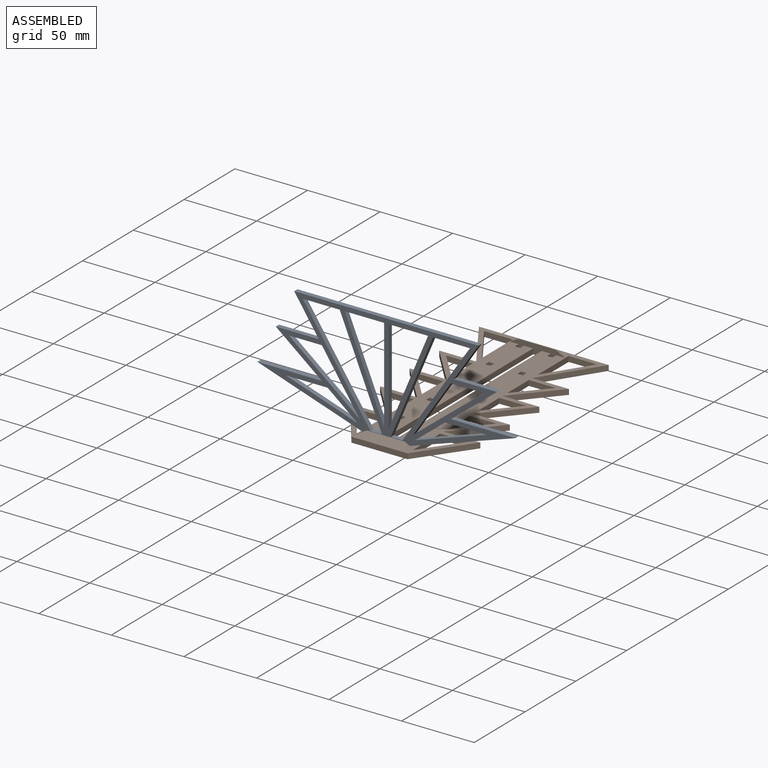
[diagram: assembled view]
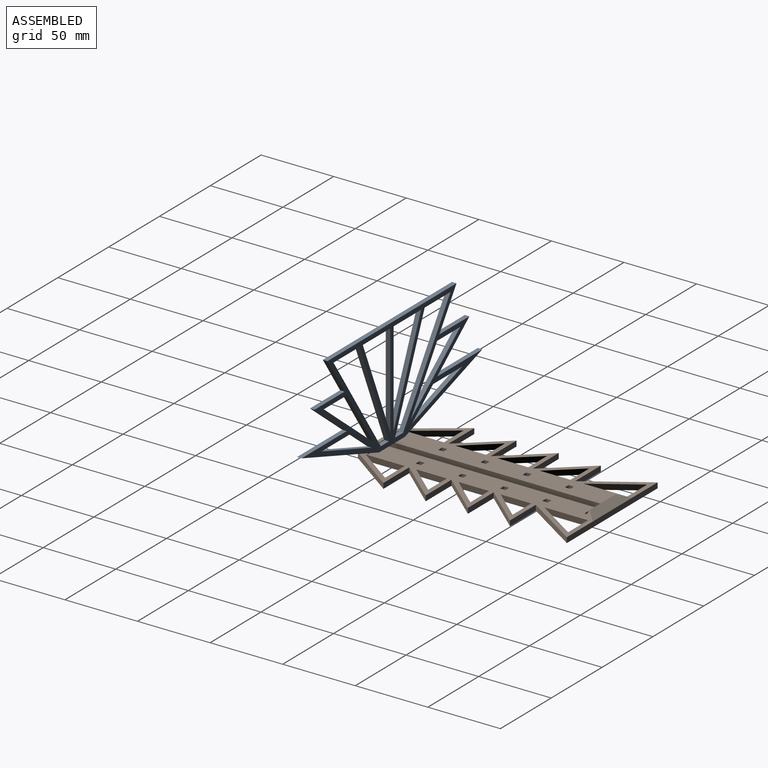
[diagram: assembled view, second angle]
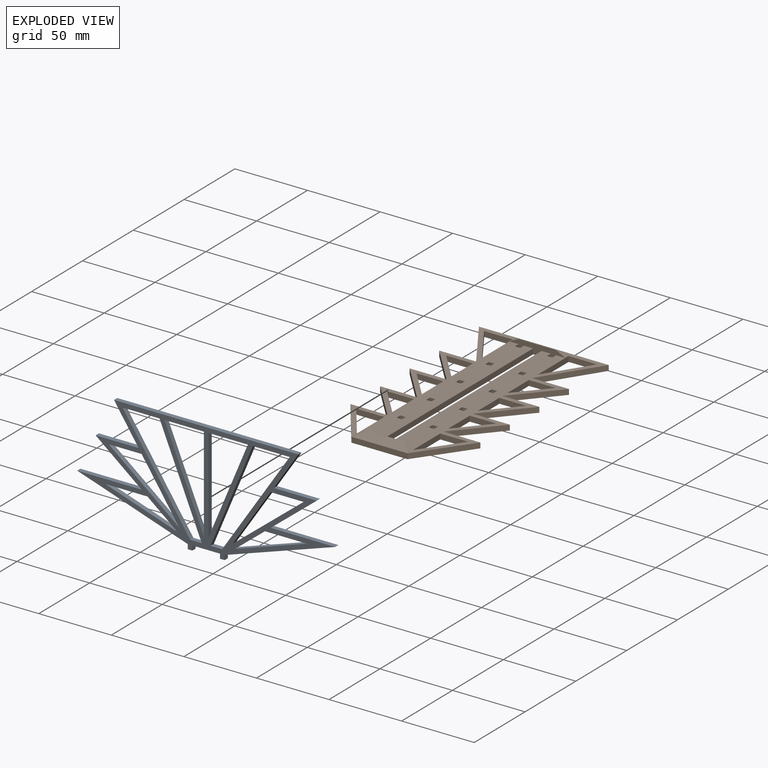
[diagram: exploded view]
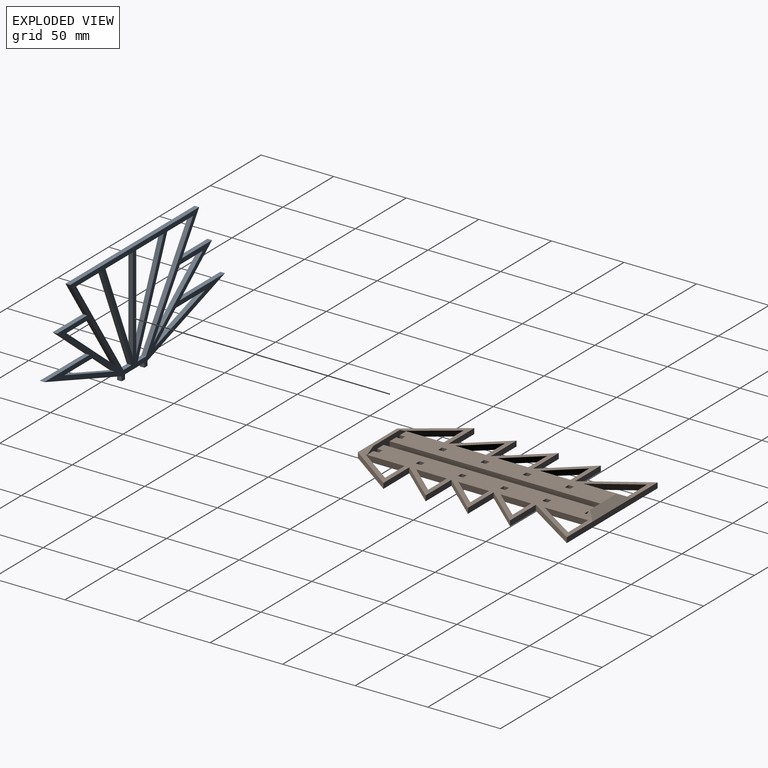
[diagram: exploded view, second angle]
ASSEMBLY  parts=2 mates=2
PART A: 46 faces, bbox 177.8x79.4x3.2 mm
  f0: plane 27.12x3.18mm, normal (0,-1,0), area 86.1mm2, adj f1,f43,f44,f45
  f1: plane 65.09x27.12mm, normal (-0.92,0.38,0), area 223.9mm2, adj f0,f43,f44,f45
  f2: plane 48.64x38.91mm, normal (-0.62,0.78,0), area 197.8mm2, adj f3,f35,f44,f45
  f3: plane 38.91x25.94mm, normal (0.83,-0.55,0), area 148.5mm2, adj f2,f35,f44,f45
  f4: plane 69.85x46.57mm, normal (-0.83,0.55,0), area 266.5mm2, adj f5,f36,f44,f45
  f5: plane 7.96x3.18mm, normal (0,1,0), area 25.3mm2, adj f4,f6,f44,f45
  f6: plane 69.85x29.1mm, normal (0.92,-0.38,0), area 240.3mm2, adj f5,f36,f44,f45
  f7: plane 20.61x16.49mm, normal (0.62,-0.78,0), area 83.8mm2, adj f8,f37,f44,f45
  f8: plane 28.85x3.18mm, normal (0,-1,0), area 91.6mm2, adj f7,f37,f44,f45
  f9: plane 31.75x25.4mm, normal (-0.62,-0.78,0), area 129.1mm2, adj f10,f38,f44,f45
  f10: plane 44.45x3.18mm, normal (0,1,0), area 141.1mm2, adj f9,f11,f44,f45
  f11: plane 76.2x25.4mm, normal (-0.32,-0.95,0), area 255mm2, adj f10,f12,f44,f45
  f12: plane 3.18x3.18mm, normal (-1,0,0), area 10.1mm2, adj f11,f13,f44,f45
  f13: plane 3.18x3.18mm, normal (0,-1,0), area 10.1mm2, adj f12,f14,f44,f45
  f14: plane 3.18x3.18mm, normal (1,0,0), area 10.1mm2, adj f13,f15,f44,f45
  f15: plane 19.05x3.18mm, normal (0,-1,0), area 60.5mm2, adj f14,f16,f44,f45
  f16: plane 3.18x3.18mm, normal (-1,0,0), area 10.1mm2, adj f15,f17,f44,f45
  f17: plane 3.18x3.18mm, normal (0,-1,0), area 10.1mm2, adj f16,f18,f44,f45
  f18: plane 3.18x3.18mm, normal (1,0,0), area 10.1mm2, adj f17,f19,f44,f45
  f19: plane 76.2x25.4mm, normal (0.32,-0.95,0), area 255mm2, adj f18,f20,f44,f45
  f20: plane 44.45x3.18mm, normal (0,1,0), area 141.1mm2, adj f19,f21,f44,f45
  f21: plane 31.75x25.4mm, normal (0.62,-0.78,0), area 129.1mm2, adj f20,f22,f44,f45
  f22: plane 29.63x3.18mm, normal (0,1,0), area 94.1mm2, adj f21,f23,f44,f45
  f23: plane 25.4x16.93mm, normal (0.83,-0.55,0), area 96.9mm2, adj f22,f24,f44,f45
  f24: plane 127x3.18mm, normal (0,1,0), area 403.2mm2, adj f23,f25,f44,f45
  f25: plane 25.4x16.93mm, normal (-0.83,-0.55,0), area 96.9mm2, adj f24,f38,f44,f45
  f26: plane 27.12x3.18mm, normal (0,-1,0), area 86.1mm2, adj f27,f39,f44,f45
  f27: plane 65.09x3.18mm, normal (-1,0,0), area 206.7mm2, adj f26,f39,f44,f45
  f28: plane 69.85x46.57mm, normal (0.83,0.55,0), area 266.5mm2, adj f29,f40,f44,f45
  f29: plane 25.42x3.18mm, normal (0,-1,0), area 80.7mm2, adj f28,f30,f44,f45
  f30: plane 69.85x29.1mm, normal (-0.92,-0.38,0), area 240.3mm2, adj f29,f40,f44,f45
  f31: plane 20.61x16.49mm, normal (-0.62,-0.78,0), area 83.8mm2, adj f32,f41,f44,f45
  f32: plane 49.46x16.49mm, normal (0.32,0.95,0), area 165.5mm2, adj f31,f41,f44,f45
  f33: plane 38.91x25.94mm, normal (-0.83,-0.55,0), area 148.5mm2, adj f34,f42,f44,f45
  f34: plane 48.64x38.91mm, normal (0.62,0.78,0), area 197.8mm2, adj f33,f42,f44,f45
  f35: plane 22.7x3.18mm, normal (0,-1,0), area 72.1mm2, adj f2,f3,f44,f45
  f36: plane 25.42x3.18mm, normal (0,-1,0), area 80.7mm2, adj f4,f6,f44,f45
  f37: plane 49.46x16.49mm, normal (-0.32,0.95,0), area 165.5mm2, adj f7,f8,f44,f45
  f38: plane 29.63x3.18mm, normal (0,1,0), area 94.1mm2, adj f9,f25,f44,f45
  f39: plane 65.09x27.12mm, normal (0.92,0.38,0), area 223.9mm2, adj f26,f27,f44,f45
  f40: plane 7.96x3.18mm, normal (0,1,0), area 25.3mm2, adj f28,f30,f44,f45
  f41: plane 28.85x3.18mm, normal (0,-1,0), area 91.6mm2, adj f31,f32,f44,f45
  f42: plane 22.7x3.18mm, normal (0,-1,0), area 72.1mm2, adj f33,f34,f44,f45
  f43: plane 65.09x3.18mm, normal (1,0,0), area 206.7mm2, adj f0,f1,f44,f45
  f44: plane 177.8x79.38mm, normal (0,0,1), area 3005.4mm2, adj f0,f1,f2,f3,f4,f5,f6,f7
  f45: plane 177.8x79.38mm, normal (0,0,-1), area 3005.4mm2, adj f0,f1,f2,f3,f4,f5,f6,f7
PART B: 107 faces, bbox 89.4x161.8x6.9 mm
  f0: plane 161.75x41.78mm, normal (0,0,1), area 3280.2mm2, adj f15,f21,f22,f23,f24,f25,f26,f27
  f1: plane 161.75x41.78mm, normal (0,0,1), area 3280.2mm2, adj f2,f3,f4,f5,f6,f7,f8,f9
  f2: plane 3.68x3.68mm, normal (1,0,0), area 13.5mm2, adj f1,f3,f99,f100
  f3: plane 3.68x3.68mm, normal (0,-1,0), area 13.5mm2, adj f1,f2,f4,f100
  f4: plane 3.68x3.68mm, normal (-1,0,0), area 13.5mm2, adj f1,f3,f99,f100
  f5: plane 3.68x3.68mm, normal (1,0,0), area 13.5mm2, adj f1,f6,f77,f100
  f6: plane 3.68x3.68mm, normal (0,-1,0), area 13.5mm2, adj f1,f5,f7,f100
  f7: plane 3.68x3.68mm, normal (-1,0,0), area 13.5mm2, adj f1,f6,f77,f100
  f8: plane 3.68x3.68mm, normal (1,0,0), area 13.5mm2, adj f1,f9,f78,f100
  f9: plane 3.68x3.68mm, normal (0,-1,0), area 13.5mm2, adj f1,f8,f10,f100
  f10: plane 3.68x3.68mm, normal (-1,0,0), area 13.5mm2, adj f1,f9,f78,f100
  f11: plane 3.68x3.68mm, normal (1,0,0), area 13.5mm2, adj f1,f12,f79,f100
  f12: plane 3.68x3.68mm, normal (0,-1,0), area 13.5mm2, adj f1,f11,f13,f100
  f13: plane 3.68x3.68mm, normal (-1,0,0), area 13.5mm2, adj f1,f12,f79,f100
  f14: plane 3.68x3.68mm, normal (1,0,0), area 13.5mm2, adj f1,f15,f80,f100
  f15: plane 38.6x6.85mm, normal (0,-1,0), area 150.9mm2, adj f0,f1,f14,f16,f24,f30,f84,f86
  f16: plane 3.68x3.68mm, normal (-1,0,0), area 13.5mm2, adj f1,f15,f80,f100
  f17: plane 21.07x3.68mm, normal (-1,0,0), area 77.4mm2, adj f1,f18,f81,f100
  f18: plane 21.07x18.41mm, normal (0.75,0.66,0), area 102.8mm2, adj f1,f17,f81,f100
  f19: plane 30.1x3.68mm, normal (-1,0,0), area 110.6mm2, adj f1,f20,f82,f100,f106
  f20: plane 30.1x19.55mm, normal (0.84,0.54,0), area 131.9mm2, adj f1,f19,f82,f100
  f21: plane 3.68x3.68mm, normal (0,-1,0), area 13.5mm2, adj f0,f22,f83,f100
  f22: plane 3.68x3.68mm, normal (-1,0,0), area 13.5mm2, adj f0,f21,f23,f100
  f23: plane 3.68x3.68mm, normal (0,1,0), area 13.5mm2, adj f0,f22,f83,f100
  f24: plane 3.68x3.68mm, normal (-1,0,0), area 13.5mm2, adj f0,f15,f25,f100
  f25: plane 3.68x3.68mm, normal (0,1,0), area 13.5mm2, adj f0,f24,f84,f100
  f26: plane 3.68x3.68mm, normal (0,-1,0), area 13.5mm2, adj f0,f27,f85,f100
  f27: plane 3.68x3.68mm, normal (-1,0,0), area 13.5mm2, adj f0,f26,f28,f100
  f28: plane 3.68x3.68mm, normal (0,1,0), area 13.5mm2, adj f0,f27,f85,f100
  f29: plane 38.6x6.85mm, normal (0,1,0), area 150.9mm2, adj f0,f1,f30,f67,f74,f76,f86,f95
  f30: plane 149.05x3.68mm, normal (1,0,0), area 547.8mm2, adj f1,f15,f29,f100
  f31: plane 18.41x3.68mm, normal (0,-1,0), area 67.7mm2, adj f0,f32,f87,f100
  f32: plane 21.07x18.41mm, normal (-0.75,0.66,0), area 102.8mm2, adj f0,f31,f87,f100
  f33: plane 19.22x3.68mm, normal (0,-1,0), area 70.6mm2, adj f0,f34,f88,f100
  f34: plane 26.8x19.22mm, normal (-0.81,0.58,0), area 121.2mm2, adj f0,f33,f88,f100
  f35: plane 19.55x3.68mm, normal (0,-1,0), area 71.9mm2, adj f0,f36,f89,f100
  f36: plane 30.1x19.55mm, normal (-0.84,0.54,0), area 131.9mm2, adj f0,f35,f89,f100
  f37: plane 18.41x3.68mm, normal (0,-1,0), area 67.7mm2, adj f0,f38,f90,f100
  f38: plane 21.07x18.41mm, normal (-0.75,0.66,0), area 102.8mm2, adj f0,f37,f90,f100
  f39: plane 18.41x3.68mm, normal (0,-1,0), area 67.7mm2, adj f0,f40,f91,f100
  f40: plane 21.07x18.41mm, normal (-0.75,0.66,0), area 102.8mm2, adj f0,f39,f91,f100
  f41: plane 29.08x25.4mm, normal (-0.75,-0.66,0), area 141.9mm2, adj f1,f42,f92,f100
  f42: plane 25.4x3.68mm, normal (0,1,0), area 93.3mm2, adj f1,f41,f43,f100
  f43: plane 29.08x25.4mm, normal (-0.75,-0.66,0), area 141.9mm2, adj f1,f42,f44,f100
  f44: plane 25.4x3.68mm, normal (0,1,0), area 93.3mm2, adj f1,f43,f45,f100
  f45: plane 35.43x25.4mm, normal (-0.81,-0.58,0), area 160.2mm2, adj f1,f44,f46,f100
  f46: plane 38.6x3.68mm, normal (0,-1,0), area 141.9mm2, adj f45,f47,f100,f102
  f47: plane 35.43x25.4mm, normal (0.81,-0.58,0), area 160.2mm2, adj f0,f46,f48,f100
  f48: plane 25.4x3.68mm, normal (0,1,0), area 93.3mm2, adj f0,f47,f49,f100
  f49: plane 29.08x25.4mm, normal (0.75,-0.66,0), area 141.9mm2, adj f0,f48,f50,f100
  f50: plane 25.4x3.68mm, normal (0,1,0), area 93.3mm2, adj f0,f49,f51,f100
  f51: plane 29.08x25.4mm, normal (0.75,-0.66,0), area 141.9mm2, adj f0,f50,f52,f100
  f52: plane 25.4x3.68mm, normal (0,1,0), area 93.3mm2, adj f0,f51,f53,f100
  f53: plane 29.08x25.4mm, normal (0.75,-0.66,0), area 141.9mm2, adj f0,f52,f54,f100
  f54: plane 25.4x3.68mm, normal (0,1,0), area 93.3mm2, adj f0,f53,f55,f100
  f55: plane 39.1x25.4mm, normal (0.84,-0.54,0), area 171.4mm2, adj f0,f54,f56,f100
  f56: plane 89.4x3.68mm, normal (0,1,0), area 328.5mm2, adj f0,f1,f55,f57,f100,f105
  f57: plane 39.1x25.4mm, normal (-0.84,-0.54,0), area 171.4mm2, adj f1,f56,f58,f100
  f58: plane 25.4x3.68mm, normal (0,1,0), area 93.3mm2, adj f1,f57,f59,f100
  f59: plane 29.08x25.4mm, normal (-0.75,-0.66,0), area 141.9mm2, adj f1,f58,f92,f100
  f60: plane 3.68x3.68mm, normal (1,0,0), area 13.5mm2, adj f0,f61,f93,f100
  f61: plane 3.68x3.68mm, normal (0,-1,0), area 13.5mm2, adj f0,f60,f62,f100
  f62: plane 3.68x3.68mm, normal (-1,0,0), area 13.5mm2, adj f0,f61,f93,f100
  f63: plane 3.68x3.68mm, normal (1,0,0), area 13.5mm2, adj f0,f64,f94,f100
  f64: plane 3.68x3.68mm, normal (0,-1,0), area 13.5mm2, adj f0,f63,f65,f100
  f65: plane 3.68x3.68mm, normal (-1,0,0), area 13.5mm2, adj f0,f64,f94,f100
  f66: plane 3.68x3.68mm, normal (0,-1,0), area 13.5mm2, adj f0,f67,f95,f100
  f67: plane 3.68x3.68mm, normal (-1,0,0), area 13.5mm2, adj f0,f29,f66,f100
  f68: plane 21.07x3.68mm, normal (-1,0,0), area 77.4mm2, adj f1,f69,f96,f100
  f69: plane 21.07x18.41mm, normal (0.75,0.66,0), area 102.8mm2, adj f1,f68,f96,f100
  f70: plane 21.07x3.68mm, normal (-1,0,0), area 77.4mm2, adj f1,f71,f97,f100
  f71: plane 21.07x18.41mm, normal (0.75,0.66,0), area 102.8mm2, adj f1,f70,f97,f100
  f72: plane 26.8x3.68mm, normal (-1,0,0), area 98.5mm2, adj f1,f73,f98,f100,f101
  f73: plane 26.8x19.22mm, normal (0.81,0.58,0), area 121.2mm2, adj f1,f72,f98,f100
  f74: plane 3.68x3.68mm, normal (1,0,0), area 13.5mm2, adj f1,f29,f75,f100
  f75: plane 3.68x3.68mm, normal (0,-1,0), area 13.5mm2, adj f1,f74,f76,f100
  f76: plane 3.68x3.68mm, normal (-1,0,0), area 13.5mm2, adj f1,f29,f75,f100
  f77: plane 3.68x3.68mm, normal (0,1,0), area 13.5mm2, adj f1,f5,f7,f100
  f78: plane 3.68x3.68mm, normal (0,1,0), area 13.5mm2, adj f1,f8,f10,f100
  f79: plane 3.68x3.68mm, normal (0,1,0), area 13.5mm2, adj f1,f11,f13,f100
  f80: plane 3.68x3.68mm, normal (0,1,0), area 13.5mm2, adj f1,f14,f16,f100
  f81: plane 18.41x3.68mm, normal (0,-1,0), area 67.7mm2, adj f1,f17,f18,f100
  f82: plane 19.55x3.68mm, normal (0,-1,0), area 71.9mm2, adj f1,f19,f20,f100
  f83: plane 3.68x3.68mm, normal (1,0,0), area 13.5mm2, adj f0,f21,f23,f100
  f84: plane 3.68x3.68mm, normal (1,0,0), area 13.5mm2, adj f0,f15,f25,f100
  f85: plane 3.68x3.68mm, normal (1,0,0), area 13.5mm2, adj f0,f26,f28,f100
  f86: plane 149.05x3.68mm, normal (-1,0,0), area 547.8mm2, adj f0,f15,f29,f100
  f87: plane 21.07x3.68mm, normal (1,0,0), area 77.4mm2, adj f0,f31,f32,f100
  f88: plane 26.8x3.68mm, normal (1,0,0), area 98.5mm2, adj f0,f33,f34,f100,f103
  f89: plane 30.1x3.68mm, normal (1,0,0), area 110.6mm2, adj f0,f35,f36,f100,f104
  f90: plane 21.07x3.68mm, normal (1,0,0), area 77.4mm2, adj f0,f37,f38,f100
  f91: plane 21.07x3.68mm, normal (1,0,0), area 77.4mm2, adj f0,f39,f40,f100
  f92: plane 25.4x3.68mm, normal (0,1,0), area 93.3mm2, adj f1,f41,f59,f100
  f93: plane 3.68x3.68mm, normal (0,1,0), area 13.5mm2, adj f0,f60,f62,f100
  f94: plane 3.68x3.68mm, normal (0,1,0), area 13.5mm2, adj f0,f63,f65,f100
  f95: plane 3.68x3.68mm, normal (1,0,0), area 13.5mm2, adj f0,f29,f66,f100
  f96: plane 18.41x3.68mm, normal (0,-1,0), area 67.7mm2, adj f1,f68,f69,f100
  f97: plane 18.41x3.68mm, normal (0,-1,0), area 67.7mm2, adj f1,f70,f71,f100
  f98: plane 19.22x3.68mm, normal (0,-1,0), area 70.6mm2, adj f1,f72,f73,f100
  f99: plane 3.68x3.68mm, normal (0,1,0), area 13.5mm2, adj f1,f2,f4,f100
  f100: plane 161.75x89.4mm, normal (0,0,-1), area 7050.6mm2, adj f2,f3,f4,f5,f6,f7,f8,f9
  f101: plane 6.35x6.35mm, normal (-0.45,0,0.89), area 22.5mm2, adj f1,f29,f72,f102
  f102: plane 38.6x6.35mm, normal (0,-0.45,0.89), area 229mm2, adj f29,f46,f101,f103
  f103: plane 6.35x6.35mm, normal (0.45,0,0.89), area 22.5mm2, adj f0,f29,f88,f102
  f104: plane 6.35x6.35mm, normal (0.45,0,0.89), area 22.5mm2, adj f0,f15,f89,f105
  f105: plane 38.6x6.35mm, normal (0,0.45,0.89), area 229mm2, adj f15,f56,f104,f106
  f106: plane 6.35x6.35mm, normal (-0.45,0,0.89), area 22.5mm2, adj f1,f15,f19,f105
PLACE A rot(axis=(1,0,0),90deg) t=(-12.44,-8.43,3.18)mm
PLACE B t=(-12.43,-10.27,-0.5)mm
MATE planar A.f45 <-> B.f75  axis (0,1,0) through (-23.56,-8.43,0)mm
MATE planar A.f15 <-> B.f1  axis (0,0,-1) through (-12.44,-10.02,3.18)mm
